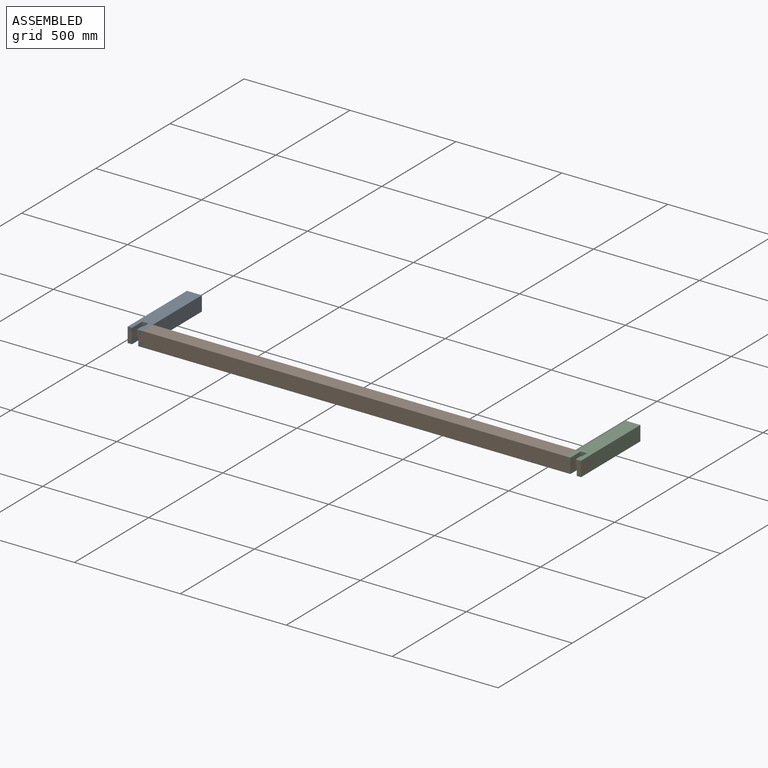
[diagram: assembled view]
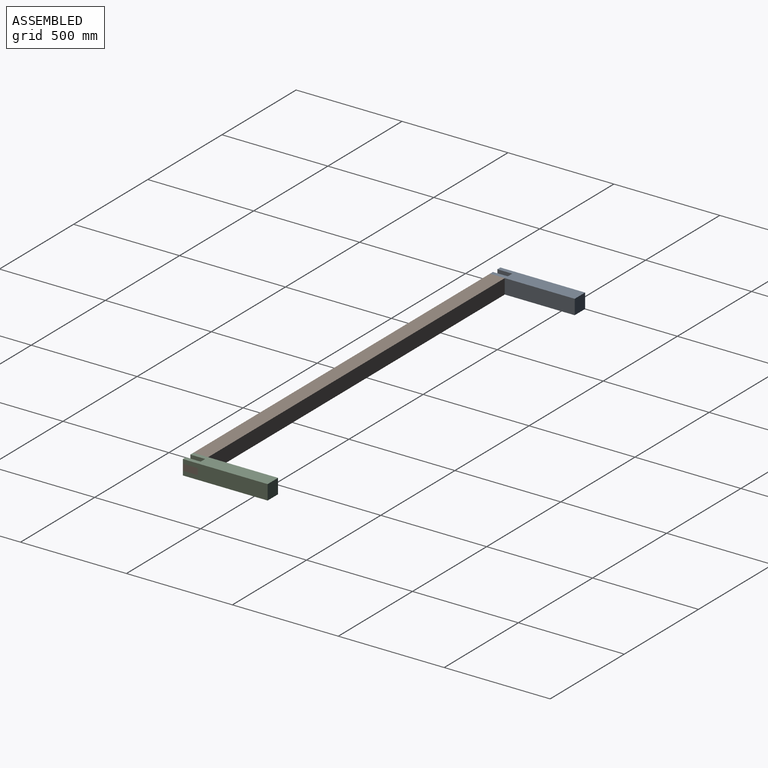
[diagram: assembled view, second angle]
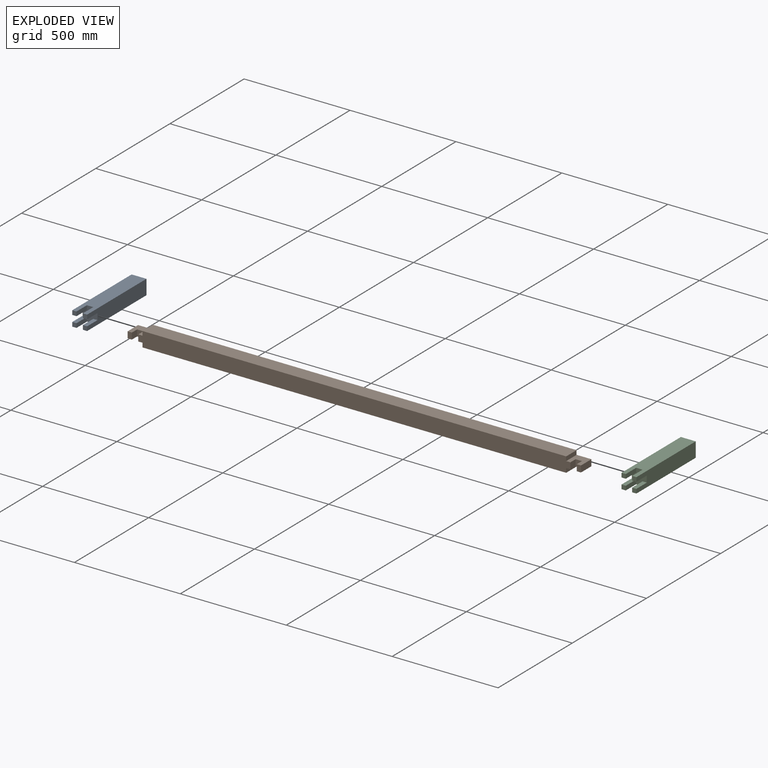
[diagram: exploded view]
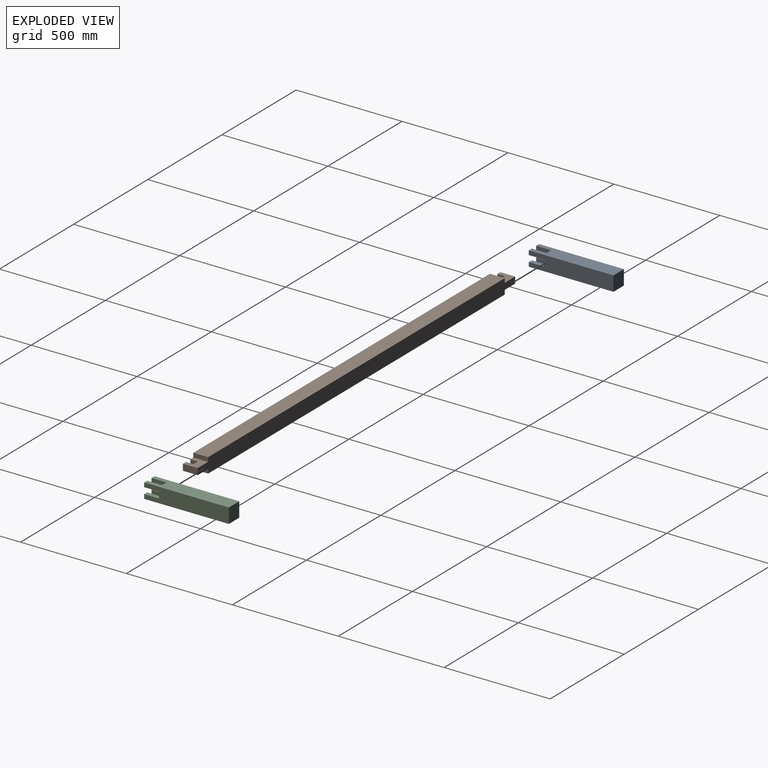
[diagram: exploded view, second angle]
ASSEMBLY  parts=3 mates=6
PART A: 18 faces, bbox 70x70x400 mm
  f0: plane 20x20mm, normal (0,0,1), area 400mm2, adj f5,f7,f10,f11
  f1: plane 20x20mm, normal (0,0,1), area 400mm2, adj f4,f5,f12,f13
  f2: plane 20x20mm, normal (0,0,1), area 400mm2, adj f4,f6,f14,f15
  f3: plane 20x20mm, normal (0,0,1), area 400mm2, adj f6,f7,f9,f16
  f4: plane 400x70mm, normal (-1,0,0), area 25900mm2, adj f1,f2,f5,f6,f8,f13,f14,f17
  f5: plane 400x70mm, normal (0,1,0), area 25900mm2, adj f0,f1,f4,f7,f8,f11,f12,f17
  f6: plane 400x70mm, normal (0,-1,0), area 25900mm2, adj f2,f3,f4,f7,f8,f15,f16,f17
  f7: plane 400x70mm, normal (1,0,0), area 25900mm2, adj f0,f3,f5,f6,f8,f9,f10,f17
  f8: plane 70x70mm, normal (0,0,-1), area 4900mm2, adj f4,f5,f6,f7
  f9: plane 70x20mm, normal (0,1,0), area 1400mm2, adj f3,f7,f16,f17
  f10: plane 70x20mm, normal (0,-1,0), area 1400mm2, adj f0,f7,f11,f17
  f11: plane 70x20mm, normal (-1,0,0), area 1400mm2, adj f0,f5,f10,f17
  f12: plane 70x20mm, normal (1,0,0), area 1400mm2, adj f1,f5,f13,f17
  f13: plane 70x20mm, normal (0,-1,0), area 1400mm2, adj f1,f4,f12,f17
  f14: plane 70x20mm, normal (0,1,0), area 1400mm2, adj f2,f4,f15,f17
  f15: plane 70x20mm, normal (1,0,0), area 1400mm2, adj f2,f6,f14,f17
  f16: plane 70x20mm, normal (-1,0,0), area 1400mm2, adj f3,f6,f9,f17
  f17: plane 70x70mm, normal (0,0,1), area 3300mm2, adj f4,f5,f6,f7,f9,f10,f11,f12
PART B: 22 faces, bbox 70x2140x70 mm
  f0: plane 2040x70mm, normal (0,0,1), area 141200mm2, adj f1,f2,f4,f6,f7,f8,f10,f13
  f1: plane 70x70mm, normal (1,0,0), area 3850mm2, adj f0,f2,f3,f5,f9,f10,f11,f12
  f2: plane 70x20mm, normal (0,-1,0), area 1400mm2, adj f0,f1,f5,f6
  f3: plane 30x20mm, normal (0,0,1), area 600mm2, adj f1,f8,f9,f11
  f4: plane 2000x70mm, normal (-1,0,0), area 140000mm2, adj f0,f5,f7,f16
  f5: plane 2140x70mm, normal (0,0,-1), area 144200mm2, adj f1,f2,f4,f6,f7,f8,f9,f13
  f6: plane 2000x70mm, normal (1,0,0), area 140000mm2, adj f0,f2,f5,f14
  f7: plane 70x20mm, normal (0,-1,0), area 1400mm2, adj f0,f4,f5,f8
  f8: plane 70x70mm, normal (-1,0,0), area 3850mm2, adj f0,f3,f5,f7,f9,f10,f11,f12
  f9: plane 70x30mm, normal (0,-1,0), area 2100mm2, adj f1,f3,f5,f8
  f10: plane 35x30mm, normal (0,-1,0), area 1050mm2, adj f0,f1,f8,f12
  f11: plane 35x30mm, normal (0,1,0), area 1050mm2, adj f1,f3,f8,f12
  f12: plane 30x30mm, normal (0,0,1), area 900mm2, adj f1,f8,f10,f11
  f13: plane 70x70mm, normal (1,0,0), area 3850mm2, adj f0,f5,f14,f15,f18,f19,f20,f21
  f14: plane 70x20mm, normal (0,1,0), area 1400mm2, adj f0,f5,f6,f13
  f15: plane 30x20mm, normal (0,0,1), area 600mm2, adj f13,f17,f18,f20
  f16: plane 70x20mm, normal (0,1,0), area 1400mm2, adj f0,f4,f5,f17
  f17: plane 70x70mm, normal (-1,0,0), area 3850mm2, adj f0,f5,f15,f16,f18,f19,f20,f21
  f18: plane 70x30mm, normal (0,1,0), area 2100mm2, adj f5,f13,f15,f17
  f19: plane 35x30mm, normal (0,1,0), area 1050mm2, adj f0,f13,f17,f21
  f20: plane 35x30mm, normal (0,-1,0), area 1050mm2, adj f13,f15,f17,f21
  f21: plane 30x30mm, normal (0,0,1), area 900mm2, adj f13,f17,f19,f20
PART C: same geometry as A
PLACE A rot(axis=(0.58,0.58,-0.58),120deg) t=(-1371.18,1604.86,1143.62)mm
PLACE B rot(axis=(0.58,0.58,-0.58),120deg) t=(-372.32,1278.16,1132.24)mm
PLACE C rot(axis=(0.58,0.58,-0.58),120deg) t=(698.82,1604.86,1143.62)mm
MATE planar C.f5 <-> B.f18  axis (1,0,0) through (697.68,1418.24,1176.13)mm
MATE planar A.f6 <-> B.f9  axis (-1,0,0) through (-1442.32,1404.86,1141.13)mm
MATE planar B.f5 <-> C.f17  axis (0,1,0) through (-1442.32,1274.86,1191.13)mm
MATE planar A.f7 <-> B.f6  axis (0,0,-1) through (-1407.32,1604.86,1141.13)mm
MATE planar B.f1 <-> C.f16  axis (0,0,-1) through (-1407.32,1244.64,1161.13)mm
MATE planar A.f17 <-> B.f5  axis (0,-1,0) through (-1407.32,1274.86,1176.13)mm
